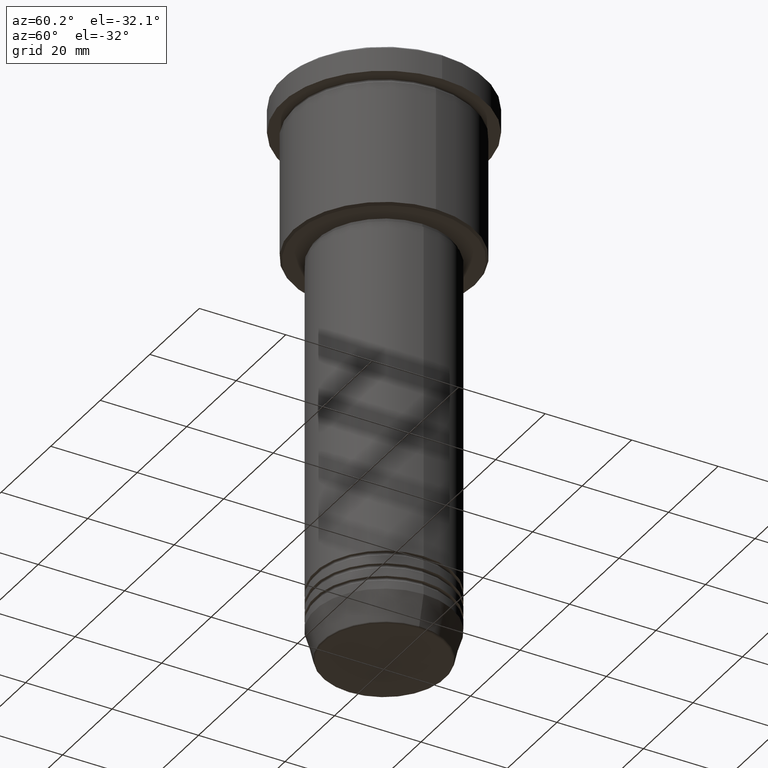
[diagram: clean part render]
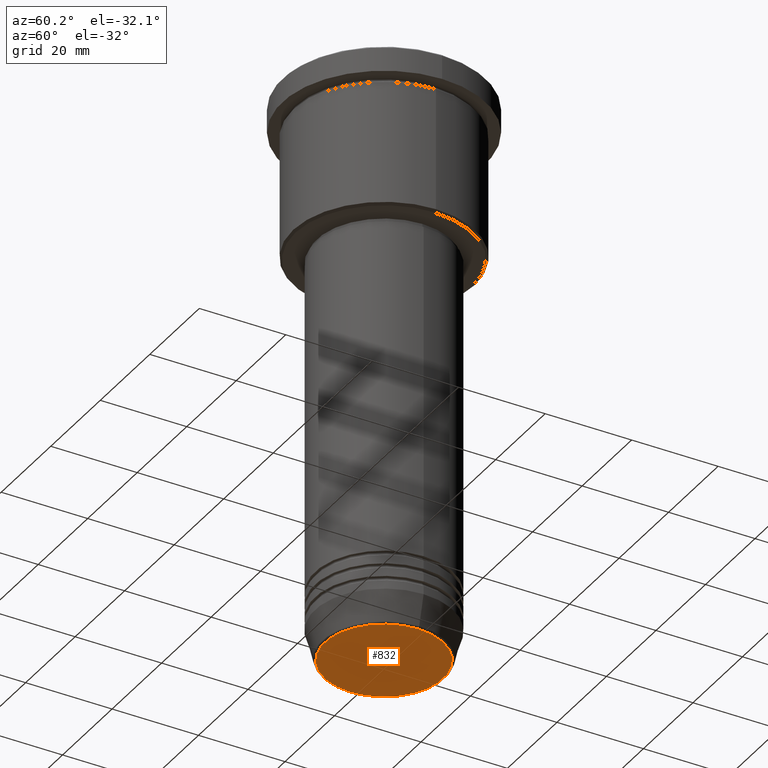
[diagram: same view with one face highlighted and labeled with its STEP entity id]
A machine part, auxiliary view. The second image highlights one B-rep face of the part: STEP entity #832.
In plain terms, the highlighted planar face has unit normal (0, -0, 1).
Its self-contained STEP definition (entity closure, byte-faithful):
#11 = FACE_OUTER_BOUND ( 'NONE', #795, .T. ) ;
#70 = ORIENTED_EDGE ( 'NONE', *, *, #288, .T. ) ;
#80 = EDGE_CURVE ( 'NONE', #1129, #867, #287, .T. ) ;
#82 = ORIENTED_EDGE ( 'NONE', *, *, #80, .T. ) ;
#102 = CARTESIAN_POINT ( 'NONE',  ( -13.74069215899265473, 1.712322416342415197E-15, -131.0000000000000000 ) ) ;
#104 = DIRECTION ( 'NONE',  ( 1.000000000000000000, 0.000000000000000000, 0.000000000000000000 ) ) ;
#124 = CARTESIAN_POINT ( 'NONE',  ( 0.000000000000000000, 0.000000000000000000, -131.0000000000000000 ) ) ;
#151 = CIRCLE ( 'NONE', #382, 13.74069215899265473 ) ;
#168 = DIRECTION ( 'NONE',  ( 1.000000000000000000, 0.000000000000000000, 0.000000000000000000 ) ) ;
#287 = CIRCLE ( 'NONE', #765, 13.74069215899265473 ) ;
#288 = EDGE_CURVE ( 'NONE', #867, #1129, #151, .T. ) ;
#326 = DIRECTION ( 'NONE',  ( 1.000000000000000000, 0.000000000000000000, 0.000000000000000000 ) ) ;
#382 = AXIS2_PLACEMENT_3D ( 'NONE', #124, #695, #326 ) ;
#432 = DIRECTION ( 'NONE',  ( 0.000000000000000000, 0.000000000000000000, -1.000000000000000000 ) ) ;
#564 = PLANE ( 'NONE',  #842 ) ;
#617 = CARTESIAN_POINT ( 'NONE',  ( 0.000000000000000000, 0.000000000000000000, -131.0000000000000000 ) ) ;
#695 = DIRECTION ( 'NONE',  ( 0.000000000000000000, 0.000000000000000000, -1.000000000000000000 ) ) ;
#765 = AXIS2_PLACEMENT_3D ( 'NONE', #617, #432, #168 ) ;
#795 = EDGE_LOOP ( 'NONE', ( #70, #82 ) ) ;
#822 = DIRECTION ( 'NONE',  ( 0.000000000000000000, -0.000000000000000000, 1.000000000000000000 ) ) ;
#832 = ADVANCED_FACE ( 'NONE', ( #11 ), #564, .F. ) ;
#842 = AXIS2_PLACEMENT_3D ( 'NONE', #929, #822, #104 ) ;
#867 = VERTEX_POINT ( 'NONE', #1110 ) ;
#929 = CARTESIAN_POINT ( 'NONE',  ( 0.000000000000000000, 0.000000000000000000, -131.0000000000000000 ) ) ;
#1110 = CARTESIAN_POINT ( 'NONE',  ( 13.74069215899265473, 0.000000000000000000, -131.0000000000000000 ) ) ;
#1129 = VERTEX_POINT ( 'NONE', #102 ) ;